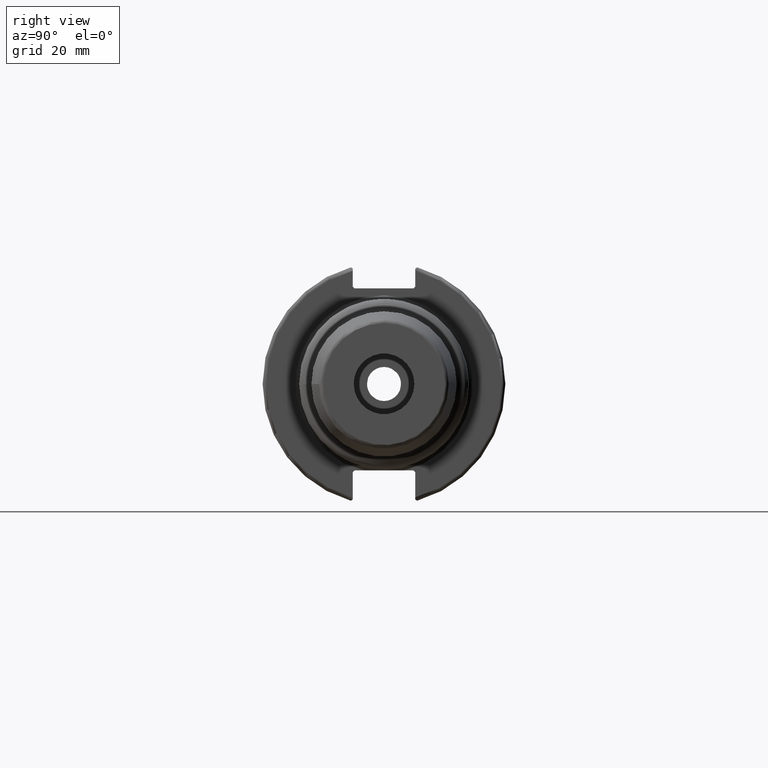
[diagram: clean part render]
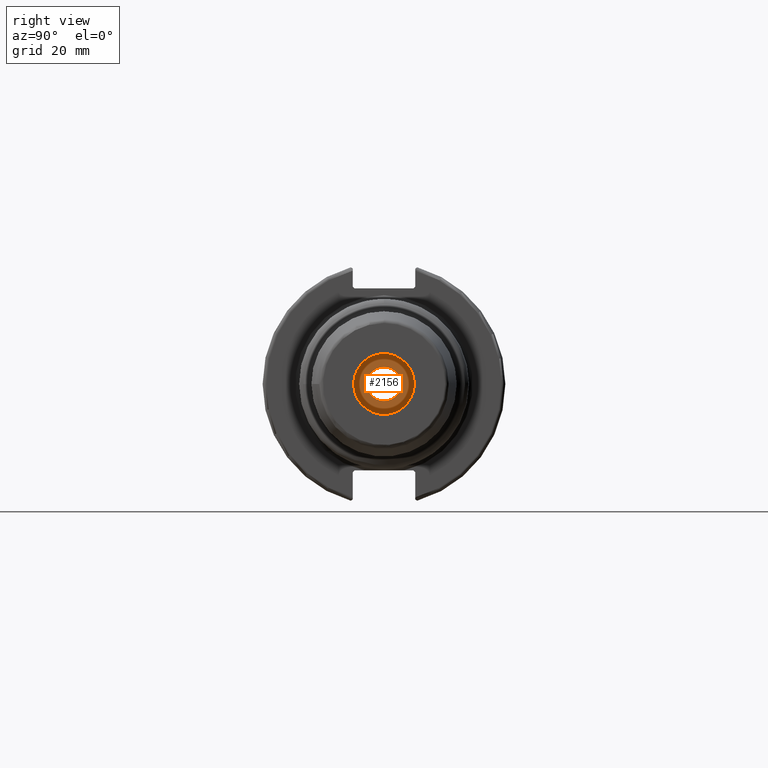
[diagram: same view with one face highlighted and labeled with its STEP entity id]
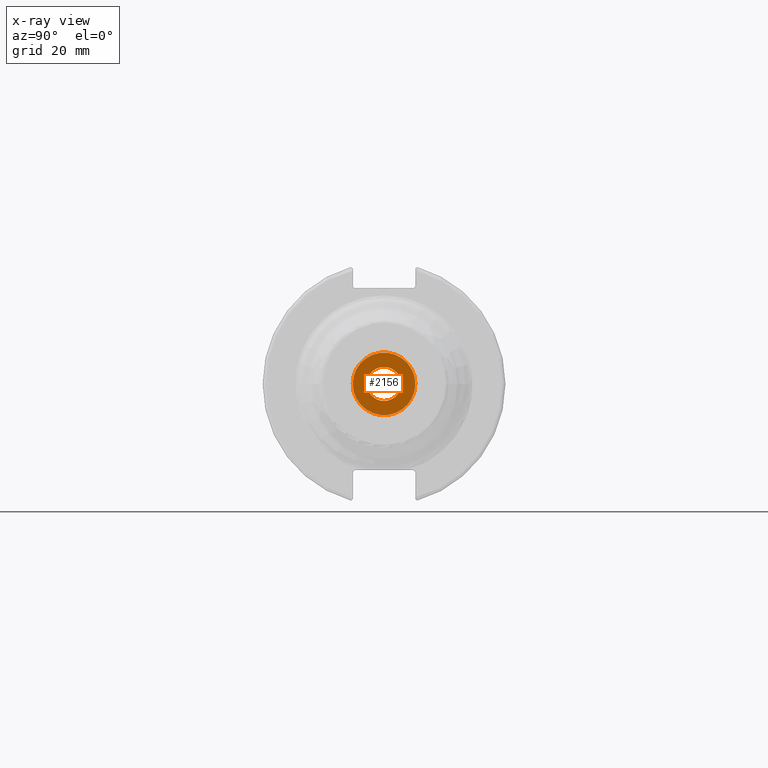
[diagram: x-ray of the same camera — body ghosted, the highlighted face saturated]
A machine part, right view. The second image highlights one B-rep face of the part: STEP entity #2156.
The next image is the same camera in x-ray: the body ghosted, the highlighted face saturated — about 9% of this face is hidden behind the body in this view.
In plain terms, the highlighted planar face has unit normal (1, 0, 0).
Its self-contained STEP definition (entity closure, byte-faithful):
#50=PLANE('',#2382);
#126=FACE_BOUND('',#310,.T.);
#198=FACE_OUTER_BOUND('',#309,.T.);
#309=EDGE_LOOP('',(#1611,#1612));
#310=EDGE_LOOP('',(#1613,#1614));
#611=CIRCLE('',#2257,4.458734);
#612=CIRCLE('',#2258,4.458734);
#706=CIRCLE('',#2379,8.2);
#707=CIRCLE('',#2380,8.2);
#791=VERTEX_POINT('',#3283);
#792=VERTEX_POINT('',#3284);
#880=VERTEX_POINT('',#3591);
#881=VERTEX_POINT('',#3593);
#1041=EDGE_CURVE('',#791,#792,#611,.T.);
#1042=EDGE_CURVE('',#792,#791,#612,.T.);
#1156=EDGE_CURVE('',#881,#880,#706,.T.);
#1157=EDGE_CURVE('',#880,#881,#707,.T.);
#1611=ORIENTED_EDGE('',*,*,#1156,.T.);
#1612=ORIENTED_EDGE('',*,*,#1157,.T.);
#1613=ORIENTED_EDGE('',*,*,#1041,.T.);
#1614=ORIENTED_EDGE('',*,*,#1042,.T.);
#2156=ADVANCED_FACE('',(#198,#126),#50,.T.);
#2257=AXIS2_PLACEMENT_3D('',#3285,#2566,#2567);
#2258=AXIS2_PLACEMENT_3D('',#3286,#2568,#2569);
#2379=AXIS2_PLACEMENT_3D('',#3594,#2824,#2825);
#2380=AXIS2_PLACEMENT_3D('',#3595,#2826,#2827);
#2382=AXIS2_PLACEMENT_3D('',#3597,#2830,#2831);
#2566=DIRECTION('center_axis',(-1.,0.,0.));
#2567=DIRECTION('ref_axis',(0.,0.,-1.));
#2568=DIRECTION('center_axis',(-1.,0.,0.));
#2569=DIRECTION('ref_axis',(0.,0.,-1.));
#2824=DIRECTION('center_axis',(1.,0.,0.));
#2825=DIRECTION('ref_axis',(0.,0.,-1.));
#2826=DIRECTION('center_axis',(1.,0.,0.));
#2827=DIRECTION('ref_axis',(0.,0.,-1.));
#2830=DIRECTION('center_axis',(1.,0.,0.));
#2831=DIRECTION('ref_axis',(0.,0.,-1.));
#3283=CARTESIAN_POINT('',(50.6,0.,-4.458734));
#3284=CARTESIAN_POINT('',(50.6,-5.46037432134947E-16,4.458734));
#3285=CARTESIAN_POINT('Origin',(50.6,0.,0.));
#3286=CARTESIAN_POINT('Origin',(50.6,0.,0.));
#3591=CARTESIAN_POINT('',(50.6,-8.2,-1.00421037530083E-15));
#3593=CARTESIAN_POINT('',(50.6,8.2,0.));
#3594=CARTESIAN_POINT('Origin',(50.6,0.,0.));
#3595=CARTESIAN_POINT('Origin',(50.6,0.,0.));
#3597=CARTESIAN_POINT('Origin',(50.6,-6.88302969993818E-15,0.));